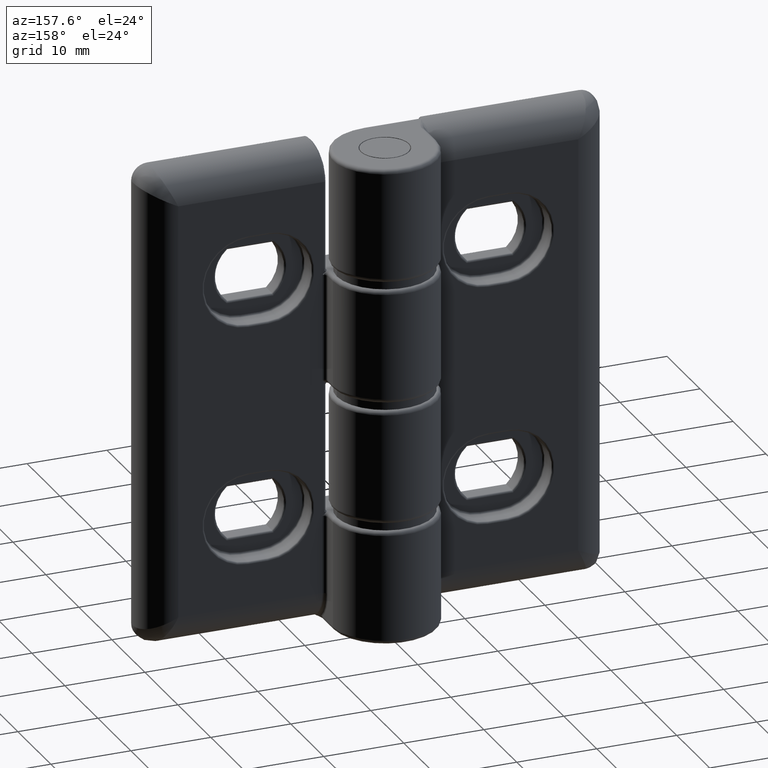
[diagram: clean part render]
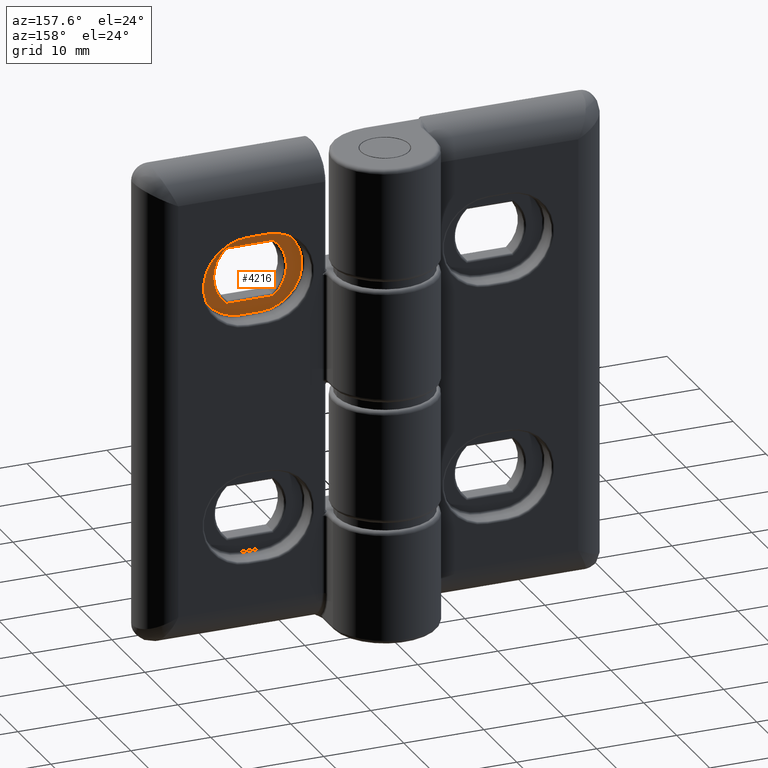
[diagram: same view with one face highlighted and labeled with its STEP entity id]
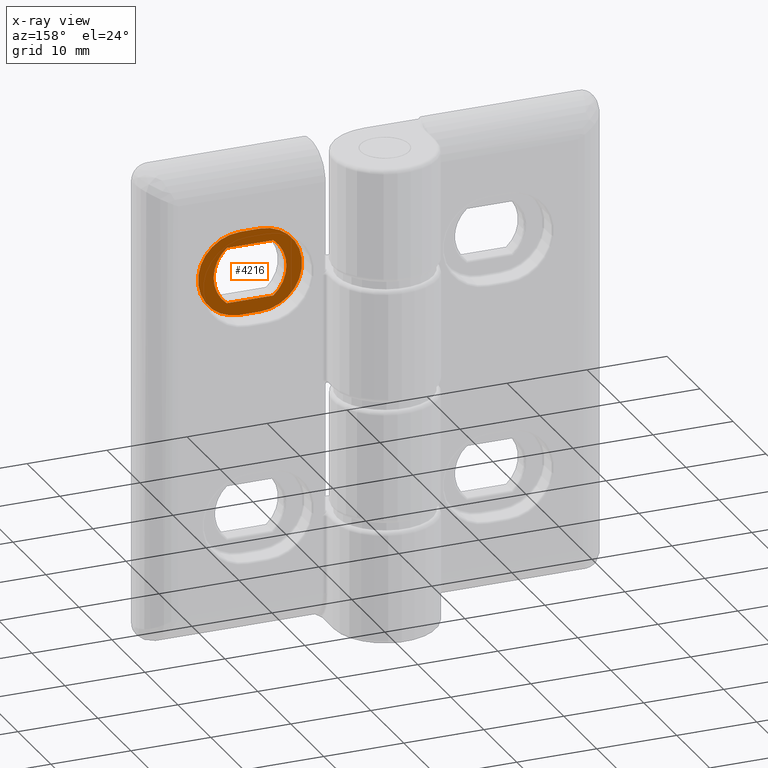
[diagram: x-ray of the same camera — body ghosted, the highlighted face saturated]
A machine part, auxiliary view. The second image highlights one B-rep face of the part: STEP entity #4216.
The next image is the same camera in x-ray: the body ghosted, the highlighted face saturated — about 0% of this face is hidden behind the body in this view.
In plain terms, the highlighted planar face has unit normal (0, 1, 0).
Its self-contained STEP definition (entity closure, byte-faithful):
#296=FACE_BOUND('',#732,.T.);
#426=FACE_OUTER_BOUND('',#731,.T.);
#731=EDGE_LOOP('',(#3202,#3203,#3204,#3205));
#732=EDGE_LOOP('',(#3206,#3207,#3208,#3209));
#1068=CIRCLE('',#4615,5.25);
#1069=CIRCLE('',#4616,5.25);
#1070=CIRCLE('',#4617,4.55);
#1071=CIRCLE('',#4618,4.55);
#1389=LINE('',#8042,#1648);
#1390=LINE('',#8046,#1649);
#1391=LINE('',#8050,#1650);
#1392=LINE('',#8054,#1651);
#1648=VECTOR('',#5511,2.5);
#1649=VECTOR('',#5514,2.5);
#1650=VECTOR('',#5517,5.81463670404);
#1651=VECTOR('',#5520,5.81463670404);
#1988=VERTEX_POINT('',#8040);
#1989=VERTEX_POINT('',#8041);
#1990=VERTEX_POINT('',#8043);
#1991=VERTEX_POINT('',#8045);
#1992=VERTEX_POINT('',#8048);
#1993=VERTEX_POINT('',#8049);
#1994=VERTEX_POINT('',#8051);
#1995=VERTEX_POINT('',#8053);
#2417=EDGE_CURVE('',#1988,#1989,#1389,.T.);
#2418=EDGE_CURVE('',#1990,#1988,#1068,.T.);
#2419=EDGE_CURVE('',#1991,#1990,#1390,.T.);
#2420=EDGE_CURVE('',#1989,#1991,#1069,.T.);
#2421=EDGE_CURVE('',#1992,#1993,#1391,.T.);
#2422=EDGE_CURVE('',#1992,#1994,#1070,.T.);
#2423=EDGE_CURVE('',#1995,#1994,#1392,.T.);
#2424=EDGE_CURVE('',#1995,#1993,#1071,.T.);
#3202=ORIENTED_EDGE('',*,*,#2417,.F.);
#3203=ORIENTED_EDGE('',*,*,#2418,.F.);
#3204=ORIENTED_EDGE('',*,*,#2419,.F.);
#3205=ORIENTED_EDGE('',*,*,#2420,.F.);
#3206=ORIENTED_EDGE('',*,*,#2421,.F.);
#3207=ORIENTED_EDGE('',*,*,#2422,.T.);
#3208=ORIENTED_EDGE('',*,*,#2423,.F.);
#3209=ORIENTED_EDGE('',*,*,#2424,.T.);
#4106=PLANE('',#4614);
#4216=ADVANCED_FACE('',(#426,#296),#4106,.T.);
#4614=AXIS2_PLACEMENT_3D('',#8039,#5509,#5510);
#4615=AXIS2_PLACEMENT_3D('',#8044,#5512,#5513);
#4616=AXIS2_PLACEMENT_3D('',#8047,#5515,#5516);
#4617=AXIS2_PLACEMENT_3D('',#8052,#5518,#5519);
#4618=AXIS2_PLACEMENT_3D('',#8055,#5521,#5522);
#5509=DIRECTION('center_axis',(0.,0.,-1.));
#5510=DIRECTION('ref_axis',(-1.,0.,0.));
#5511=DIRECTION('',(-1.,0.,0.));
#5512=DIRECTION('center_axis',(0.,0.,1.));
#5513=DIRECTION('ref_axis',(0.,-1.,0.));
#5514=DIRECTION('',(1.,0.,0.));
#5515=DIRECTION('center_axis',(0.,0.,1.));
#5516=DIRECTION('ref_axis',(0.,1.,0.));
#5517=DIRECTION('',(-1.,0.,0.));
#5518=DIRECTION('center_axis',(0.,0.,1.));
#5519=DIRECTION('ref_axis',(0.63897106637829,-0.769230769230788,0.));
#5520=DIRECTION('',(1.,0.,0.));
#5521=DIRECTION('center_axis',(0.,0.,1.));
#5522=DIRECTION('ref_axis',(-0.63897106637829,0.769230769230788,0.));
#8039=CARTESIAN_POINT('Origin',(0.,-30.,4.5));
#8040=CARTESIAN_POINT('',(16.25,20.25,4.5));
#8041=CARTESIAN_POINT('',(13.75,20.25,4.5));
#8042=CARTESIAN_POINT('',(16.25,20.25,4.5));
#8043=CARTESIAN_POINT('',(16.25,9.75,4.5));
#8044=CARTESIAN_POINT('Origin',(16.25,15.,4.5));
#8045=CARTESIAN_POINT('',(13.75,9.75,4.5));
#8046=CARTESIAN_POINT('',(13.75,9.75,4.5));
#8047=CARTESIAN_POINT('Origin',(13.75,15.,4.5));
#8048=CARTESIAN_POINT('',(17.90731835202,11.5,4.5));
#8049=CARTESIAN_POINT('',(12.09268164798,11.5,4.5));
#8050=CARTESIAN_POINT('',(17.90731835202,11.5,4.5));
#8051=CARTESIAN_POINT('',(17.90731835202,18.5,4.5));
#8052=CARTESIAN_POINT('Origin',(15.,15.,4.5));
#8053=CARTESIAN_POINT('',(12.09268164798,18.5,4.5));
#8054=CARTESIAN_POINT('',(12.09268164798,18.5,4.5));
#8055=CARTESIAN_POINT('Origin',(15.,15.,4.5));